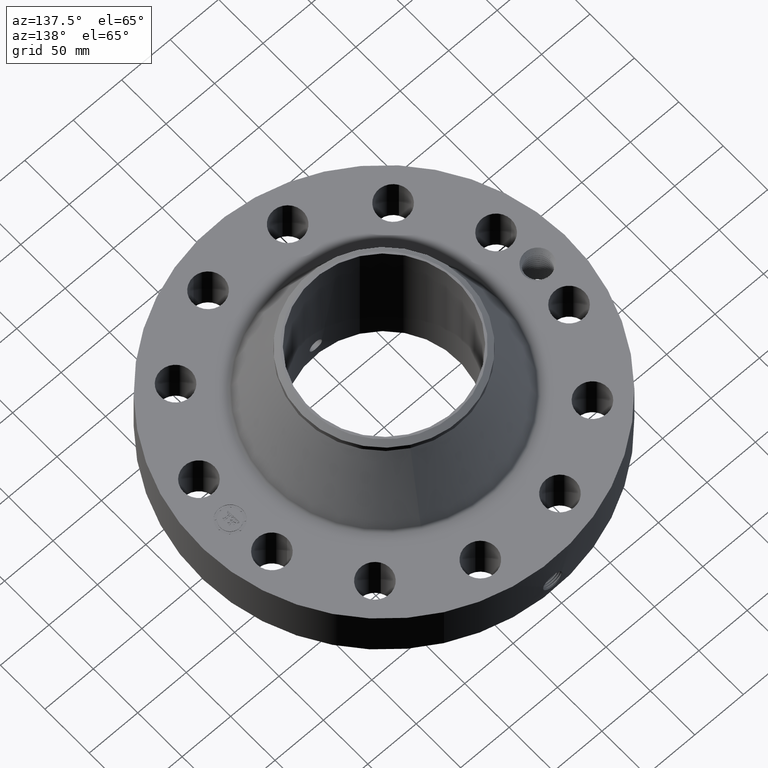
[diagram: clean part render]
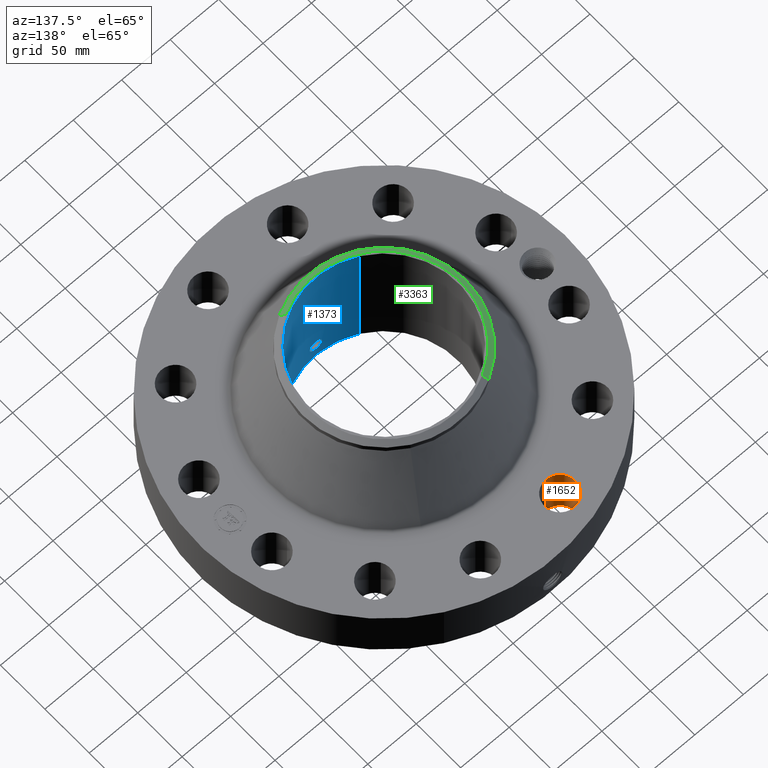
[diagram: same view with three faces highlighted in distinct colors, each labeled with its STEP entity id]
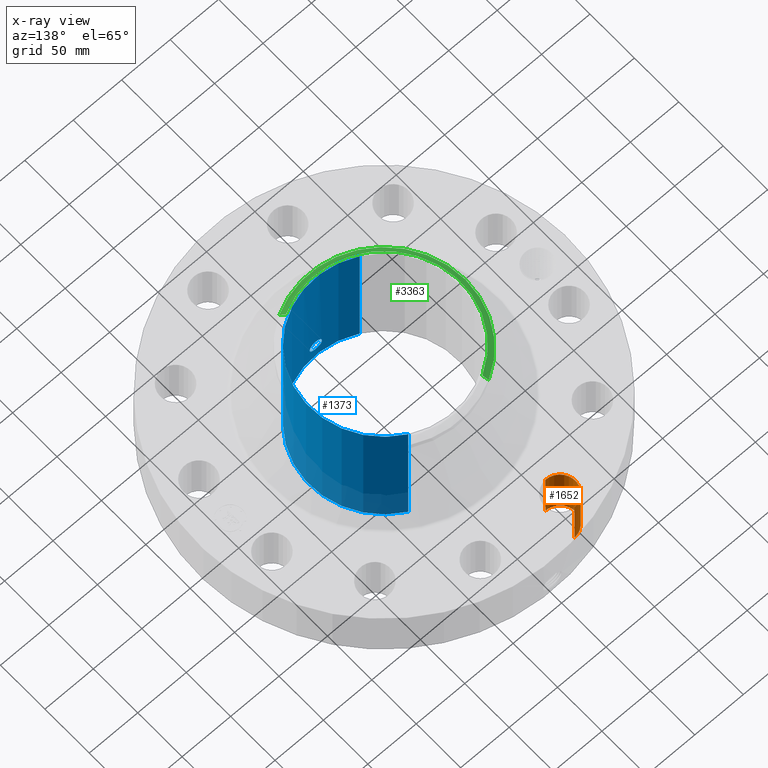
[diagram: x-ray of the same camera — body ghosted, the three highlighted faces saturated]
A machine part, auxiliary view with three faces highlighted in distinct colors.
The next image is the same camera in x-ray (body ghosted, the three faces saturated) — at least one of them is partly hidden behind the body in this view.
Their STEP definitions:

[orange] entity #1652 — the highlighted cylindrical surface (edge-blend (fillet) strip) has radius 15.875 mm, axis along (0, 0, -1).
#394=AXIS2_PLACEMENT_3D('Circle Axis2P3D',#392,#393,$) ;
#800=AXIS2_PLACEMENT_3D('Circle Axis2P3D',#798,#799,$) ;
#1634=AXIS2_PLACEMENT_3D('Cylinder Axis2P3D',#1631,#1632,#1633) ;
#392=CARTESIAN_POINT('Axis2P3D Location',(-1.6176190319,6.03703641433,0.250000000001)) ;
#396=CARTESIAN_POINT('Vertex',(-1.60287116609,5.41221043819,0.250000000001)) ;
#398=CARTESIAN_POINT('Vertex',(-1.6323668977,6.66186239047,0.250000000001)) ;
#793=CARTESIAN_POINT('Vertex',(-1.6323668977,6.66186239047,2.44000000001)) ;
#795=CARTESIAN_POINT('Vertex',(-1.60287116609,5.41221043819,2.44000000001)) ;
#798=CARTESIAN_POINT('Axis2P3D Location',(-1.6176190319,6.03703641433,2.44000000001)) ;
#1631=CARTESIAN_POINT('Axis2P3D Location',(-1.6176190319,6.03703641433,2.43606299214)) ;
#1636=CARTESIAN_POINT('Line Origine',(-1.60287116609,5.41221043819,1.34500000001)) ;
#1641=CARTESIAN_POINT('Line Origine',(-1.6323668977,6.66186239047,1.34500000001)) ;
#393=DIRECTION('Axis2P3D Direction',(0.,0.,-0.0393700787402)) ;
#799=DIRECTION('Axis2P3D Direction',(0.,0.,-0.0393700787402)) ;
#1632=DIRECTION('Axis2P3D Direction',(0.,0.,-0.0393700787402)) ;
#1633=DIRECTION('Axis2P3D XDirection',(-0.000928999420902,0.039359116607,0.)) ;
#1637=DIRECTION('Vector Direction',(0.,0.,-0.0393700787402)) ;
#1642=DIRECTION('Vector Direction',(0.,0.,-0.0393700787402)) ;
#1638=VECTOR('Line Direction',#1637,0.0393700787402) ;
#1643=VECTOR('Line Direction',#1642,0.0393700787402) ;
#1647=ORIENTED_EDGE('',*,*,#1640,.F.) ;
#1648=ORIENTED_EDGE('',*,*,#400,.T.) ;
#1649=ORIENTED_EDGE('',*,*,#1645,.T.) ;
#1650=ORIENTED_EDGE('',*,*,#802,.F.) ;
#1652=ADVANCED_FACE('PartBody',(#1651),#1635,.F.) ;
#395=CIRCLE('generated circle',#394,0.625000000003) ;
#801=CIRCLE('generated circle',#800,0.625000000003) ;
#1635=CYLINDRICAL_SURFACE('generated cylinder',#1634,0.625000000003) ;
#400=EDGE_CURVE('',#397,#399,#395,.T.) ;
#802=EDGE_CURVE('',#796,#794,#801,.T.) ;
#1640=EDGE_CURVE('',#397,#796,#1639,.F.) ;
#1645=EDGE_CURVE('',#399,#794,#1644,.F.) ;
#1646=EDGE_LOOP('',(#1647,#1648,#1649,#1650)) ;
#1651=FACE_OUTER_BOUND('',#1646,.T.) ;
#1639=LINE('Line',#1636,#1638) ;
#1644=LINE('Line',#1641,#1643) ;
#397=VERTEX_POINT('',#396) ;
#399=VERTEX_POINT('',#398) ;
#794=VERTEX_POINT('',#793) ;
#796=VERTEX_POINT('',#795) ;

[blue] entity #1373 — the highlighted cylindrical surface (partial cylindrical patch) has radius 77.0255 mm, axis along (0, 0, -1).
#250=AXIS2_PLACEMENT_3D('Circle Axis2P3D',#248,#249,$) ;
#1304=AXIS2_PLACEMENT_3D('Cylinder Axis2P3D',#1301,#1302,#1303) ;
#1308=AXIS2_PLACEMENT_3D('Circle Axis2P3D',#1306,#1307,$) ;
#248=CARTESIAN_POINT('Axis2P3D Location',(0.,0.,0.250000000001)) ;
#252=CARTESIAN_POINT('Vertex',(1.45385794582,2.66126911894,0.250000000001)) ;
#254=CARTESIAN_POINT('Vertex',(-1.45385794582,-2.66126911894,0.250000000001)) ;
#1301=CARTESIAN_POINT('Axis2P3D Location',(0.,0.,3.00000000001)) ;
#1306=CARTESIAN_POINT('Axis2P3D Location',(0.,0.,5.75000000002)) ;
#1310=CARTESIAN_POINT('Vertex',(1.45385794582,2.66126911894,5.75000000002)) ;
#1312=CARTESIAN_POINT('Vertex',(-1.45385794582,-2.66126911894,5.75000000002)) ;
#1315=CARTESIAN_POINT('Line Origine',(1.45385794582,2.66126911894,3.00000000001)) ;
#1320=CARTESIAN_POINT('Line Origine',(-1.45385794582,-2.66126911894,3.00000000001)) ;
#1332=CARTESIAN_POINT('Control Point',(0.219395640473,-3.02455315758,0.820143615352)) ;
#1333=CARTESIAN_POINT('Control Point',(0.206922263257,-3.0254579539,0.797311251509)) ;
#1334=CARTESIAN_POINT('Control Point',(0.191481219765,-3.02651338018,0.77610612177)) ;
#1335=CARTESIAN_POINT('Control Point',(0.173352909287,-3.02763770348,0.757038406775)) ;
#1336=CARTESIAN_POINT('Control Point',(0.112190548409,-3.03088722865,0.707588933531)) ;
#1337=CARTESIAN_POINT('Control Point',(0.0350754877767,-3.03299839928,0.684048576679)) ;
#1338=CARTESIAN_POINT('Control Point',(-0.0194612464864,-3.0331580368,0.682387747522)) ;
#1339=CARTESIAN_POINT('Control Point',(-0.124017328646,-3.03084011998,0.707479192397)) ;
#1340=CARTESIAN_POINT('Control Point',(-0.203044538276,-3.02603181156,0.780275435383)) ;
#1341=CARTESIAN_POINT('Control Point',(-0.232052740185,-3.02365897928,0.82642454201)) ;
#1342=CARTESIAN_POINT('Control Point',(-0.255813742485,-3.02169783614,0.904606241814)) ;
#1343=CARTESIAN_POINT('Control Point',(-0.248329979716,-3.02231494673,0.984059160697)) ;
#1344=CARTESIAN_POINT('Control Point',(-0.242095077615,-3.02283692028,1.01069738354)) ;
#1345=CARTESIAN_POINT('Control Point',(-0.232344480063,-3.02361387207,1.03615369278)) ;
#1346=CARTESIAN_POINT('Control Point',(-0.219395640473,-3.02455315758,1.05985638466)) ;
#1347=CARTESIAN_POINT('Vertex',(0.219395640473,-3.02455315758,0.820143615352)) ;
#1349=CARTESIAN_POINT('Vertex',(-0.219395640473,-3.02455315758,1.05985638466)) ;
#1353=CARTESIAN_POINT('Control Point',(-0.219395640473,-3.02455315758,1.05985638466)) ;
#1354=CARTESIAN_POINT('Control Point',(-0.206922263254,-3.0254579539,1.0826887485)) ;
#1355=CARTESIAN_POINT('Control Point',(-0.191481219756,-3.02651338018,1.10389387825)) ;
#1356=CARTESIAN_POINT('Control Point',(-0.1733529093,-3.02763770348,1.12296159322)) ;
#1357=CARTESIAN_POINT('Control Point',(-0.112190548421,-3.03088722865,1.17241106647)) ;
#1358=CARTESIAN_POINT('Control Point',(-0.0350754877864,-3.03299839928,1.19595142333)) ;
#1359=CARTESIAN_POINT('Control Point',(0.0194612464903,-3.0331580368,1.19761225249)) ;
#1360=CARTESIAN_POINT('Control Point',(0.124017328626,-3.03084011998,1.17252080761)) ;
#1361=CARTESIAN_POINT('Control Point',(0.203044538244,-3.02603181156,1.09972456465)) ;
#1362=CARTESIAN_POINT('Control Point',(0.232052740195,-3.02365897928,1.05357545796)) ;
#1363=CARTESIAN_POINT('Control Point',(0.255813742479,-3.02169783615,0.97539375819)) ;
#1364=CARTESIAN_POINT('Control Point',(0.248329979719,-3.02231494673,0.895940839339)) ;
#1365=CARTESIAN_POINT('Control Point',(0.242095077606,-3.02283692028,0.869302616438)) ;
#1366=CARTESIAN_POINT('Control Point',(0.232344480057,-3.02361387207,0.84384630722)) ;
#1367=CARTESIAN_POINT('Control Point',(0.219395640473,-3.02455315758,0.820143615352)) ;
#249=DIRECTION('Axis2P3D Direction',(0.,0.,-0.0393700787402)) ;
#1302=DIRECTION('Axis2P3D Direction',(0.,0.,-0.0393700787402)) ;
#1303=DIRECTION('Axis2P3D XDirection',(-0.0188750212049,-0.0345504945626,0.)) ;
#1307=DIRECTION('Axis2P3D Direction',(0.,0.,-0.0393700787402)) ;
#1316=DIRECTION('Vector Direction',(0.,0.,-0.0393700787402)) ;
#1321=DIRECTION('Vector Direction',(0.,0.,-0.0393700787402)) ;
#1317=VECTOR('Line Direction',#1316,0.0393700787402) ;
#1322=VECTOR('Line Direction',#1321,0.0393700787402) ;
#1326=ORIENTED_EDGE('',*,*,#1314,.F.) ;
#1327=ORIENTED_EDGE('',*,*,#1319,.T.) ;
#1328=ORIENTED_EDGE('',*,*,#256,.T.) ;
#1329=ORIENTED_EDGE('',*,*,#1324,.F.) ;
#1370=ORIENTED_EDGE('',*,*,#1351,.F.) ;
#1371=ORIENTED_EDGE('',*,*,#1368,.F.) ;
#1372=FACE_BOUND('',#1369,.T.) ;
#1373=ADVANCED_FACE('PartBody',(#1330,#1372),#1305,.F.) ;
#1331=B_SPLINE_CURVE_WITH_KNOTS('',5,(#1332,#1333,#1334,#1335,#1336,#1337,#1338,#1339,#1340,#1341,#1342,#1343,#1344,#1345,#1346),.UNSPECIFIED.,.F.,.U.,(6,3,3,3,6),(0.,4.67567238146,14.0201641479,23.3700567084,28.2239571872),.UNSPECIFIED.) ;
#1352=B_SPLINE_CURVE_WITH_KNOTS('',5,(#1353,#1354,#1355,#1356,#1357,#1358,#1359,#1360,#1361,#1362,#1363,#1364,#1365,#1366,#1367),.UNSPECIFIED.,.F.,.U.,(6,3,3,3,6),(0.,4.6756723828,14.0201641487,23.3700567057,28.2239571821),.UNSPECIFIED.) ;
#251=CIRCLE('generated circle',#250,3.03250000001) ;
#1309=CIRCLE('generated circle',#1308,3.03250000001) ;
#1305=CYLINDRICAL_SURFACE('generated cylinder',#1304,3.03250000001) ;
#256=EDGE_CURVE('',#253,#255,#251,.T.) ;
#1314=EDGE_CURVE('',#1311,#1313,#1309,.T.) ;
#1319=EDGE_CURVE('',#1311,#253,#1318,.T.) ;
#1324=EDGE_CURVE('',#1313,#255,#1323,.T.) ;
#1351=EDGE_CURVE('',#1348,#1350,#1331,.T.) ;
#1368=EDGE_CURVE('',#1350,#1348,#1352,.T.) ;
#1325=EDGE_LOOP('',(#1326,#1327,#1328,#1329)) ;
#1369=EDGE_LOOP('',(#1370,#1371)) ;
#1330=FACE_OUTER_BOUND('',#1325,.T.) ;
#1318=LINE('Line',#1315,#1317) ;
#1323=LINE('Line',#1320,#1322) ;
#253=VERTEX_POINT('',#252) ;
#255=VERTEX_POINT('',#254) ;
#1311=VERTEX_POINT('',#1310) ;
#1313=VERTEX_POINT('',#1312) ;
#1348=VERTEX_POINT('',#1347) ;
#1350=VERTEX_POINT('',#1349) ;

[green] entity #3363 — the highlighted conical surface has half-angle 52.5 deg.
#2529=AXIS2_PLACEMENT_3D('Circle Axis2P3D',#2527,#2528,$) ;
#3328=AXIS2_PLACEMENT_3D('Cone Axis2P3D',#3325,#3326,#3327) ;
#3346=AXIS2_PLACEMENT_3D('Circle Axis2P3D',#3344,#3345,$) ;
#3353=AXIS2_PLACEMENT_3D('Circle Axis2P3D',#3351,#3352,$) ;
#2522=CARTESIAN_POINT('Vertex',(1.49160798823,-2.73037010807,5.75000000002)) ;
#2524=CARTESIAN_POINT('Vertex',(-1.49160798823,2.73037010807,5.75000000002)) ;
#2527=CARTESIAN_POINT('Axis2P3D Location',(0.,0.,5.75000000002)) ;
#3325=CARTESIAN_POINT('Axis2P3D Location',(0.,0.,5.75000000002)) ;
#3330=CARTESIAN_POINT('Line Origine',(1.54045182436,-2.81977815037,5.67182478691)) ;
#3334=CARTESIAN_POINT('Vertex',(1.58929566048,-2.90918619268,5.59364957379)) ;
#3337=CARTESIAN_POINT('Line Origine',(-1.54045182436,2.81977815037,5.67182478691)) ;
#3341=CARTESIAN_POINT('Vertex',(-1.58929566048,2.90918619268,5.59364957379)) ;
#3344=CARTESIAN_POINT('Axis2P3D Location',(0.,0.,5.59364957379)) ;
#3348=CARTESIAN_POINT('Vertex',(-1.58929566048,-2.90918619268,5.59364957379)) ;
#3351=CARTESIAN_POINT('Axis2P3D Location',(0.,0.,5.59364957379)) ;
#2528=DIRECTION('Axis2P3D Direction',(0.,0.,-0.0393700787402)) ;
#3326=DIRECTION('Axis2P3D Direction',(-0.,-0.,-0.0393700787402)) ;
#3327=DIRECTION('Axis2P3D XDirection',(-0.0188750212049,0.0345504945626,0.)) ;
#3331=DIRECTION('Vector Direction',(0.014974561121,-0.02741075027,-0.023966985394)) ;
#3338=DIRECTION('Vector Direction',(-0.014974561121,0.02741075027,-0.023966985394)) ;
#3345=DIRECTION('Axis2P3D Direction',(0.,0.,-0.0393700787402)) ;
#3352=DIRECTION('Axis2P3D Direction',(0.,0.,-0.0393700787402)) ;
#3332=VECTOR('Line Direction',#3331,0.0393700787402) ;
#3339=VECTOR('Line Direction',#3338,0.0393700787402) ;
#3357=ORIENTED_EDGE('',*,*,#3336,.F.) ;
#3358=ORIENTED_EDGE('',*,*,#2531,.F.) ;
#3359=ORIENTED_EDGE('',*,*,#3343,.T.) ;
#3360=ORIENTED_EDGE('',*,*,#3350,.T.) ;
#3361=ORIENTED_EDGE('',*,*,#3355,.F.) ;
#3363=ADVANCED_FACE('PartBody',(#3362),#3329,.T.) ;
#2530=CIRCLE('generated circle',#2529,3.11124015749) ;
#3347=CIRCLE('generated circle',#3346,3.31500000001) ;
#3354=CIRCLE('generated circle',#3353,3.31500000001) ;
#3329=CONICAL_SURFACE('Cone',#3328,3.11124015749,0.916297857297) ;
#2531=EDGE_CURVE('',#2525,#2523,#2530,.F.) ;
#3336=EDGE_CURVE('',#2523,#3335,#3333,.T.) ;
#3343=EDGE_CURVE('',#2525,#3342,#3340,.T.) ;
#3350=EDGE_CURVE('',#3342,#3349,#3347,.F.) ;
#3355=EDGE_CURVE('',#3335,#3349,#3354,.T.) ;
#3356=EDGE_LOOP('',(#3357,#3358,#3359,#3360,#3361)) ;
#3362=FACE_OUTER_BOUND('',#3356,.T.) ;
#3333=LINE('Line',#3330,#3332) ;
#3340=LINE('Line',#3337,#3339) ;
#2523=VERTEX_POINT('',#2522) ;
#2525=VERTEX_POINT('',#2524) ;
#3335=VERTEX_POINT('',#3334) ;
#3342=VERTEX_POINT('',#3341) ;
#3349=VERTEX_POINT('',#3348) ;